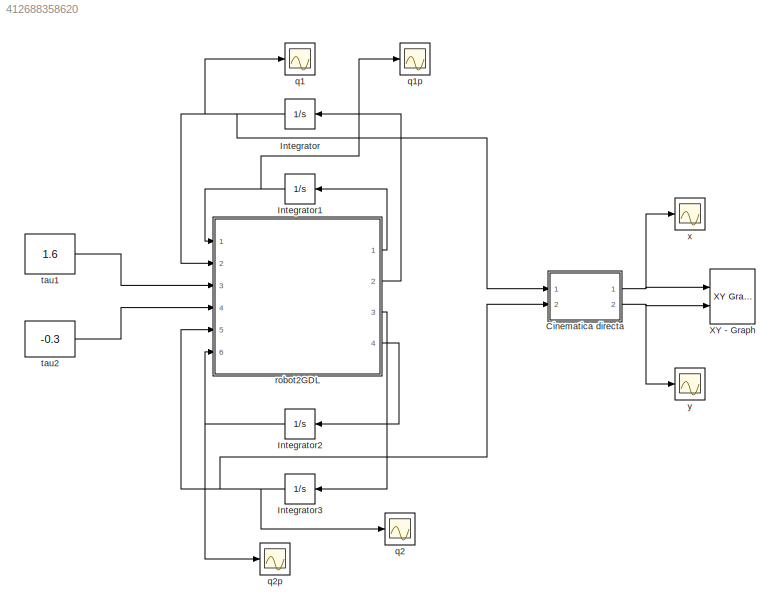
MODEL slx_412688358620
KIND model
CONFIG AbsTol = auto
CONFIG EnableMultiTasking = off
CONFIG FixedStep = auto
CONFIG MaxStep = auto
CONFIG MinStep = auto
CONFIG RelTol = 1e-20
CONFIG SampleTimeConstraint = Unconstrained
CONFIG SolverName = VariableStepAuto
CONFIG StartTime = 0.0
CONFIG StopTime = 1.2
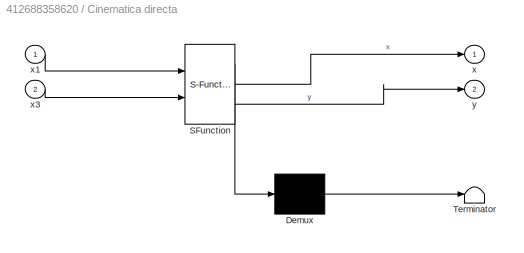
BLOCK [SubSystem] Cinematica directa
  ErrorFcn = Stateflow.Translate.translate
  PermitHierarchicalResolution = ExplicitOnly
  Ports = [2, 2]
  RequestExecContextInheritance = off
  SFBlockType = MATLAB Function
  TreatAsAtomicUnit = on
BLOCK [Demux] Cinematica directa/ Demux 
  Outputs = 1
  Ports = [1, 1]
BLOCK [S-Function] Cinematica directa/ SFunction 
  EnableBusSupport = on
  FunctionName = sf_sfun
  PortCounts = [2 3]
  Ports = [2, 3]
  SFcnIsStateOwnerBlock = off
  SFunctionDeploymentMode = off
  Tag = Stateflow S-Function 1
BLOCK [Terminator] Cinematica directa/ Terminator 
BLOCK [Outport] Cinematica directa/x
BLOCK [Inport] Cinematica directa/x1
BLOCK [Inport] Cinematica directa/x3
  Port = 2
BLOCK [Outport] Cinematica directa/y
  Port = 2
BLOCK [Integrator] Integrator
  NameLocation = top
  Ports = [1, 1]
BLOCK [Integrator] Integrator1
  NameLocation = top
  Ports = [1, 1]
BLOCK [Integrator] Integrator2
  NameLocation = top
  Ports = [1, 1]
BLOCK [Integrator] Integrator3
  NameLocation = top
  Ports = [1, 1]
BLOCK [Reference] XY - Graph  REF=simulink/Sinks/XY Graph
  Ports = [2]
  SourceBlock = simulink/Sinks/XY Graph
  SourceProductBaseCode = SL
  SourceType = XY scope.
BLOCK [Scope] q1
  Floating = off
  NumInputPorts = 1
  Ports = [1]
  ScopeSpecificationString = Simulink.scopes.TimeScopeBlockCfg('CurrentConfiguration', extmgr.ConfigurationSet(extmgr.Configuration('Core','General UI',true),extmgr.Configuration('Core','Source UI',true),extmgr.Configuration('Sources','WiredSimulink',true,'DataLoggingVariableName','ScopeData1'),extmgr.Configuration('Visuals','Time Domain',true,'SerializedDisplays',{struct('MinYLimReal','-10.663','MaxYLimReal','95.96704','YLab...<+1414ch>
BLOCK [Scope] q1p
  Floating = off
  NumInputPorts = 1
  Ports = [1]
  ScopeSpecificationString = Simulink.scopes.TimeScopeBlockCfg('CurrentConfiguration', extmgr.ConfigurationSet(extmgr.Configuration('Core','General UI',true),extmgr.Configuration('Core','Source UI',true),extmgr.Configuration('Sources','WiredSimulink',true,'DataLoggingVariableName','ScopeData3'),extmgr.Configuration('Visuals','Time Domain',true,'SerializedDisplays',{struct('MinYLimReal','-21.62794','MaxYLimReal','194.65146','Y...<+1421ch>
BLOCK [Scope] q2
  Floating = off
  NumInputPorts = 1
  Ports = [1]
  ScopeSpecificationString = Simulink.scopes.TimeScopeBlockCfg('CurrentConfiguration', extmgr.ConfigurationSet(extmgr.Configuration('Core','General UI',true),extmgr.Configuration('Core','Source UI',true),extmgr.Configuration('Sources','WiredSimulink',true),extmgr.Configuration('Visuals','Time Domain',true,'SerializedDisplays',{struct('MinYLimReal','-162.024','MaxYLimReal','18.00267','YLabelReal','','MinYLimMag',' 0.00000','Ma...<+1379ch>
BLOCK [Scope] q2p
  Floating = off
  NumInputPorts = 1
  Ports = [1]
  ScopeSpecificationString = Simulink.scopes.TimeScopeBlockCfg('CurrentConfiguration', extmgr.ConfigurationSet(extmgr.Configuration('Core','General UI',true),extmgr.Configuration('Core','Source UI',true),extmgr.Configuration('Sources','WiredSimulink',true,'DataLoggingVariableName','ScopeData2'),extmgr.Configuration('Visuals','Time Domain',true,'SerializedDisplays',{struct('MinYLimReal','-319.47718','MaxYLimReal','35.49746','Y...<+1425ch>
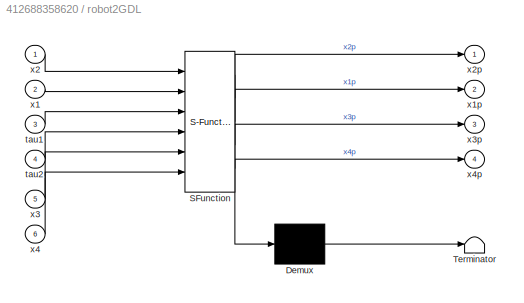
BLOCK [SubSystem] robot2GDL
  ErrorFcn = Stateflow.Translate.translate
  PermitHierarchicalResolution = ExplicitOnly
  Ports = [6, 4]
  RequestExecContextInheritance = off
  SFBlockType = MATLAB Function
  TreatAsAtomicUnit = on
BLOCK [Demux] robot2GDL/ Demux 
  Outputs = 1
  Ports = [1, 1]
BLOCK [S-Function] robot2GDL/ SFunction 
  EnableBusSupport = on
  FunctionName = sf_sfun
  PortCounts = [6 5]
  Ports = [6, 5]
  SFcnIsStateOwnerBlock = off
  SFunctionDeploymentMode = off
  Tag = Stateflow S-Function 2
BLOCK [Terminator] robot2GDL/ Terminator 
BLOCK [Inport] robot2GDL/tau1
  Port = 3
BLOCK [Inport] robot2GDL/tau2
  Port = 4
BLOCK [Inport] robot2GDL/x1
  Port = 2
BLOCK [Outport] robot2GDL/x1p
  Port = 2
BLOCK [Inport] robot2GDL/x2
BLOCK [Outport] robot2GDL/x2p
BLOCK [Inport] robot2GDL/x3
  Port = 5
BLOCK [Outport] robot2GDL/x3p
  Port = 3
BLOCK [Inport] robot2GDL/x4
  Port = 6
BLOCK [Outport] robot2GDL/x4p
  Port = 4
BLOCK [Constant] tau1
  Value = 1.6
BLOCK [Constant] tau2
  Value = -0.3
BLOCK [Scope] x
  Floating = off
  NumInputPorts = 1
  Ports = [1]
  ScopeSpecificationString = Simulink.scopes.TimeScopeBlockCfg('CurrentConfiguration', extmgr.ConfigurationSet(extmgr.Configuration('Core','General UI',true),extmgr.Configuration('Core','Source UI',true),extmgr.Configuration('Sources','WiredSimulink',true,'DataLoggingVariableName','ScopeData1'),extmgr.Configuration('Visuals','Time Domain',true,'SerializedDisplays',{struct('MinYLimReal','-0.42274','MaxYLimReal','0.42257','YLab...<+1414ch>
BLOCK [Scope] y
  Floating = off
  NumInputPorts = 1
  Ports = [1]
  ScopeSpecificationString = Simulink.scopes.TimeScopeBlockCfg('CurrentConfiguration', extmgr.ConfigurationSet(extmgr.Configuration('Core','General UI',true),extmgr.Configuration('Core','Source UI',true),extmgr.Configuration('Sources','WiredSimulink',true,'DataLoggingVariableName','ScopeData2'),extmgr.Configuration('Visuals','Time Domain',true,'SerializedDisplays',{struct('MinYLimReal','-0.42387','MaxYLimReal','0.42384','YLab...<+1413ch>
NET Cinematica directa:1 -> XY - Graph:1, x:1
NET Cinematica directa:2 -> XY - Graph:2, y:1
NET Integrator1:1 -> q1p:1, robot2GDL:1
NET Integrator2:1 -> q2p:1, robot2GDL:6
NET Integrator3:1 -> Cinematica directa:2, q2:1, robot2GDL:5
NET Integrator:1 -> Cinematica directa:1, q1:1, robot2GDL:2
LINE robot2GDL:1 -> Integrator1:1
LINE robot2GDL:2 -> Integrator:1
LINE robot2GDL:3 -> Integrator3:1
LINE robot2GDL:4 -> Integrator2:1
LINE tau1:1 -> robot2GDL:3
LINE tau2:1 -> robot2GDL:4
note: NET lines group one-source signal fan-out (src -> all destinations, sorted); 1:1 wires keep LINE
CHART Cinematica directa states=1 transitions=1
  STATE_LABEL 'eML_blk_kernel()'
  STATE_LABEL 'SCRIPT:\nfunction [x, y] = fcn(x1, x3)\n\nl1 = 0.1933;   % m (metros)\nl2 = 0.1458;   % m (metros)\n\nx = l1*sin(x1) + l2*sin(x1 + x3);\ny = -l1*cos(x1) - l2*cos(x1 + x3);\n\n'
CHART robot2GDL states=1 transitions=1
  STATE_LABEL 'eML_blk_kernel()'
  STATE_LABEL 'SCRIPT:\nfunction [x2p,x1p,x3p,x4p] = fcn(x2,x1,tau1,tau2,x3,x4)\n%Parámetros del sistema\nm1 = 0.4272;   % masa kg\nm2 = 0.3442;   % masa kg\nI1 = 0.0036;   % kg*m^2 (momento de inercia)\nI2 = 0.0021;   % kg*m^2 (momento de inercia)\nl1 = 0.1933;   % m (metros)\nl2 = 0.1458;   % m (metros)\nlc1 = 0.0741;  % m (metros)\nlc2 = 0.04849; % m (metros)\ng = 9.81;     % m/s^2 (gravedad de la tierra)\n%Modelo del si...<+619ch>'
CHART  states=0 transitions=0
CHART  states=0 transitions=0
